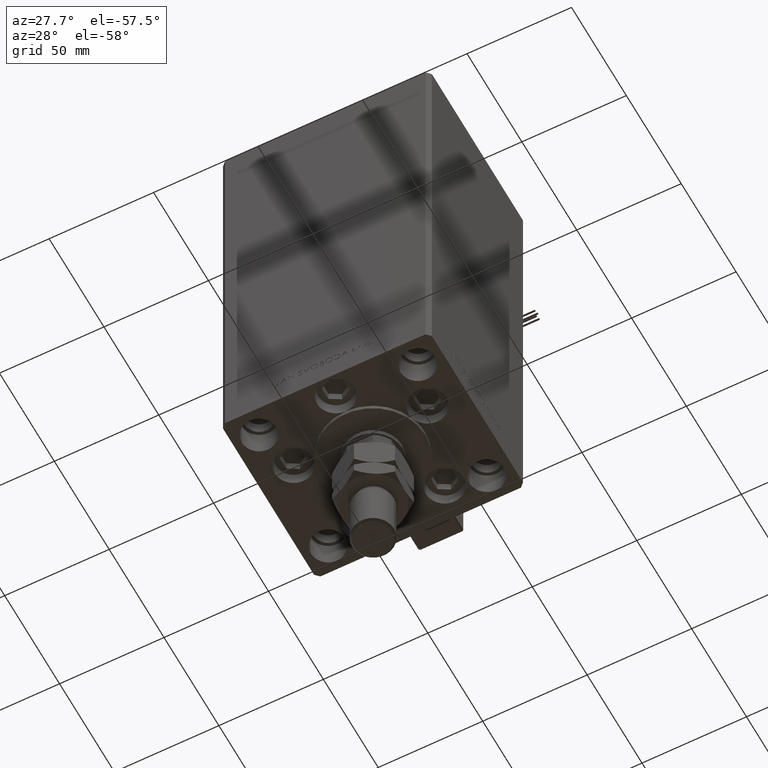
[diagram: clean part render]
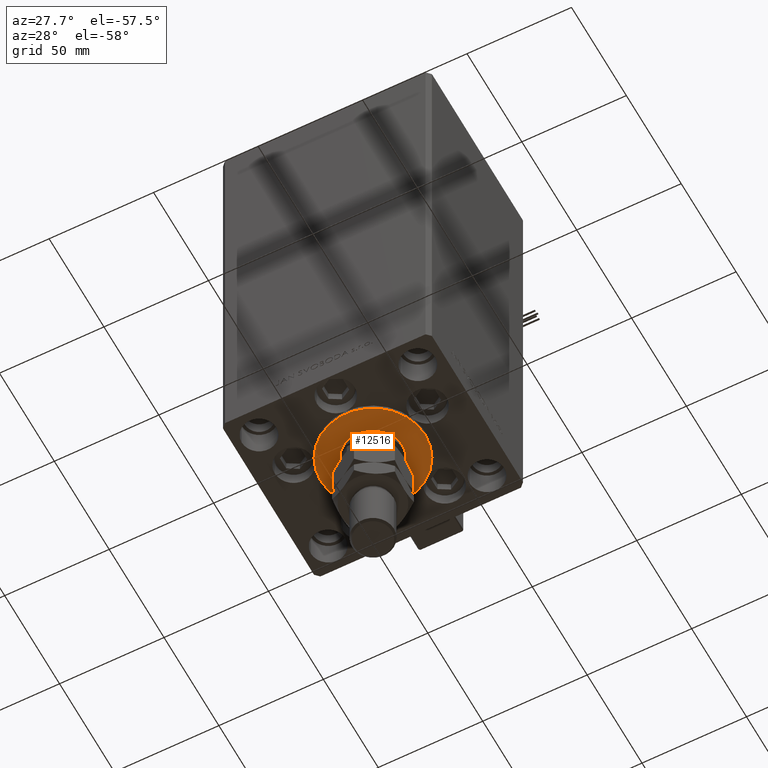
[diagram: same view with one face highlighted and labeled with its STEP entity id]
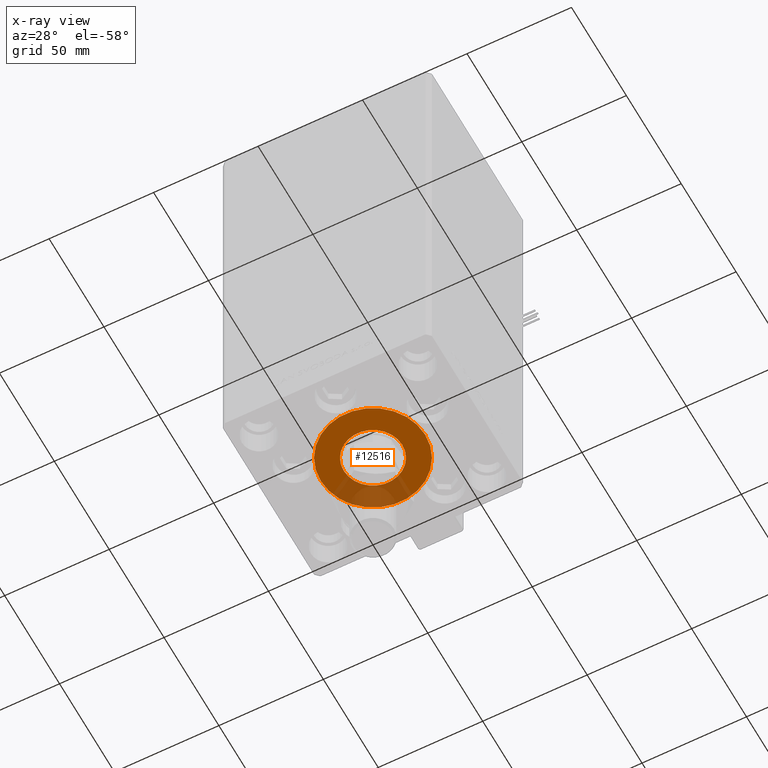
[diagram: x-ray of the same camera — body ghosted, the highlighted face saturated]
A machine part, auxiliary view. The second image highlights one B-rep face of the part: STEP entity #12516.
The next image is the same camera in x-ray: the body ghosted, the highlighted face saturated — about 26% of this face is hidden behind the body in this view.
In plain terms, the highlighted planar face has unit normal (0, 0, -1).
Its self-contained STEP definition (entity closure, byte-faithful):
#593 = DIRECTION ( 'NONE',  ( 0.000000000000000000, 0.000000000000000000, 1.000000000000000000 ) ) ;
#961 = PLANE ( 'NONE',  #3212 ) ;
#3212 = AXIS2_PLACEMENT_3D ( 'NONE', #16484, #45556, #8321 ) ;
#4459 = DIRECTION ( 'NONE',  ( 0.000000000000000000, 0.000000000000000000, 1.000000000000000000 ) ) ;
#5038 = FACE_BOUND ( 'NONE', #10263, .T. ) ;
#5683 = CARTESIAN_POINT ( 'NONE',  ( 0.000000000000000000, -6.938893903907228378E-15, 2.000000000000000000 ) ) ;
#6780 = AXIS2_PLACEMENT_3D ( 'NONE', #42453, #593, #13645 ) ;
#6839 = VERTEX_POINT ( 'NONE', #44406 ) ;
#7383 = EDGE_CURVE ( 'NONE', #8499, #23505, #32393, .T. ) ;
#8321 = DIRECTION ( 'NONE',  ( 1.000000000000000000, 0.000000000000000000, -0.000000000000000000 ) ) ;
#8499 = VERTEX_POINT ( 'NONE', #47759 ) ;
#10263 = EDGE_LOOP ( 'NONE', ( #48421, #24960 ) ) ;
#12516 = ADVANCED_FACE ( 'NONE', ( #5038, #21624 ), #961, .T. ) ;
#13645 = DIRECTION ( 'NONE',  ( 1.000000000000000000, 0.000000000000000000, 0.000000000000000000 ) ) ;
#15156 = EDGE_LOOP ( 'NONE', ( #26636, #51762 ) ) ;
#15177 = EDGE_CURVE ( 'NONE', #6839, #16075, #16281, .T. ) ;
#15444 = DIRECTION ( 'NONE',  ( 1.000000000000000000, 0.000000000000000000, 0.000000000000000000 ) ) ;
#15976 = EDGE_CURVE ( 'NONE', #16075, #6839, #30207, .T. ) ;
#16075 = VERTEX_POINT ( 'NONE', #46537 ) ;
#16281 = CIRCLE ( 'NONE', #30167, 25.00000000000000000 ) ;
#16484 = CARTESIAN_POINT ( 'NONE',  ( 0.000000000000000000, -6.938893903907228378E-15, 2.000000000000000000 ) ) ;
#16963 = CARTESIAN_POINT ( 'NONE',  ( 0.000000000000000000, -6.938893903907228378E-15, 2.000000000000000000 ) ) ;
#18716 = CARTESIAN_POINT ( 'NONE',  ( -14.00000000000000000, -5.224388385100933937E-15, 2.000000000000000000 ) ) ;
#21046 = DIRECTION ( 'NONE',  ( 1.000000000000000000, 0.000000000000000000, 0.000000000000000000 ) ) ;
#21624 = FACE_OUTER_BOUND ( 'NONE', #15156, .T. ) ;
#21947 = AXIS2_PLACEMENT_3D ( 'NONE', #5683, #33959, #50564 ) ;
#23505 = VERTEX_POINT ( 'NONE', #18716 ) ;
#24960 = ORIENTED_EDGE ( 'NONE', *, *, #29100, .F. ) ;
#26636 = ORIENTED_EDGE ( 'NONE', *, *, #15177, .T. ) ;
#27680 = DIRECTION ( 'NONE',  ( 0.000000000000000000, 0.000000000000000000, 1.000000000000000000 ) ) ;
#29100 = EDGE_CURVE ( 'NONE', #23505, #8499, #47905, .T. ) ;
#30167 = AXIS2_PLACEMENT_3D ( 'NONE', #16963, #4459, #21046 ) ;
#30207 = CIRCLE ( 'NONE', #6780, 25.00000000000000000 ) ;
#32393 = CIRCLE ( 'NONE', #21947, 14.00000000000000000 ) ;
#33959 = DIRECTION ( 'NONE',  ( 0.000000000000000000, 0.000000000000000000, 1.000000000000000000 ) ) ;
#42453 = CARTESIAN_POINT ( 'NONE',  ( 0.000000000000000000, -6.938893903907228378E-15, 2.000000000000000000 ) ) ;
#44406 = CARTESIAN_POINT ( 'NONE',  ( -25.00000000000000000, -6.938893903907228378E-15, 2.000000000000000000 ) ) ;
#44786 = CARTESIAN_POINT ( 'NONE',  ( 0.000000000000000000, -6.938893903907228378E-15, 2.000000000000000000 ) ) ;
#45556 = DIRECTION ( 'NONE',  ( 0.000000000000000000, 0.000000000000000000, 1.000000000000000000 ) ) ;
#46537 = CARTESIAN_POINT ( 'NONE',  ( 25.00000000000000000, -3.877276906038844941E-15, 2.000000000000000000 ) ) ;
#47759 = CARTESIAN_POINT ( 'NONE',  ( 14.00000000000000000, -6.938893903907228378E-15, 2.000000000000000000 ) ) ;
#47905 = CIRCLE ( 'NONE', #48032, 14.00000000000000000 ) ;
#48032 = AXIS2_PLACEMENT_3D ( 'NONE', #44786, #27680, #15444 ) ;
#48421 = ORIENTED_EDGE ( 'NONE', *, *, #7383, .F. ) ;
#50564 = DIRECTION ( 'NONE',  ( 1.000000000000000000, 0.000000000000000000, 0.000000000000000000 ) ) ;
#51762 = ORIENTED_EDGE ( 'NONE', *, *, #15976, .T. ) ;